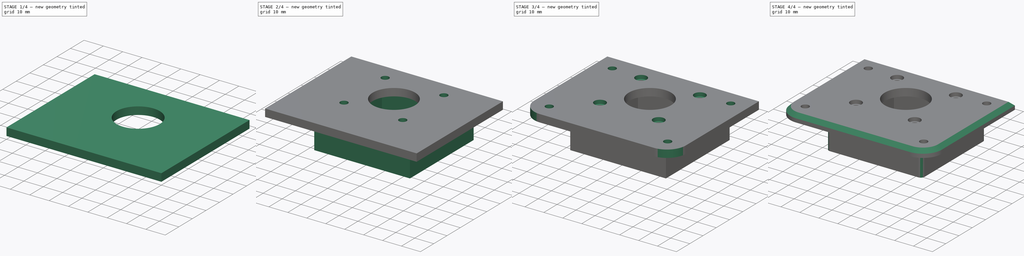
[diagram: build sequence overview — one tinted view per stage of 4, left to right]
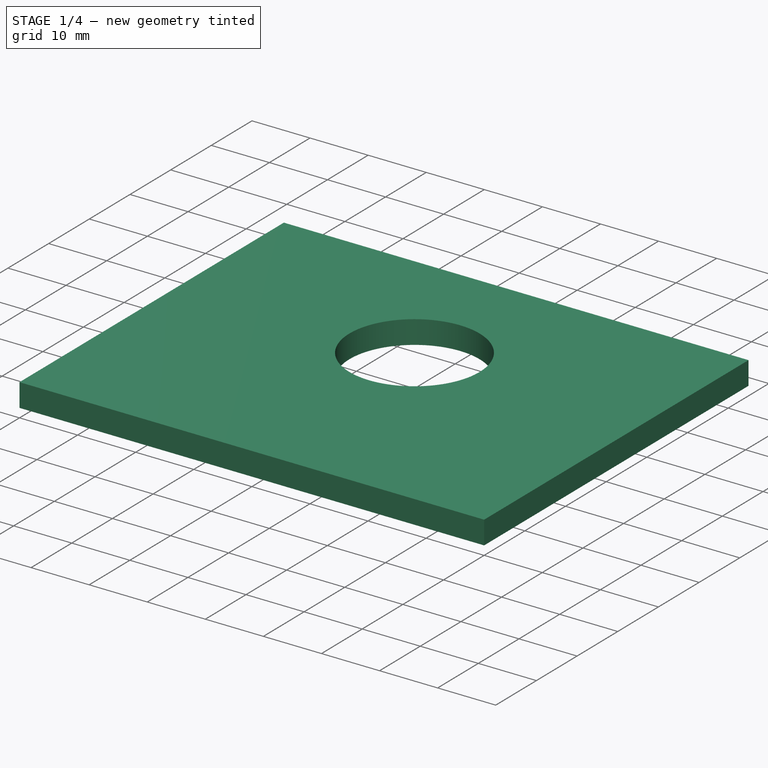
[diagram: stage 1 of 4 — iso view after this stage's code; geometry added in this stage tinted green]
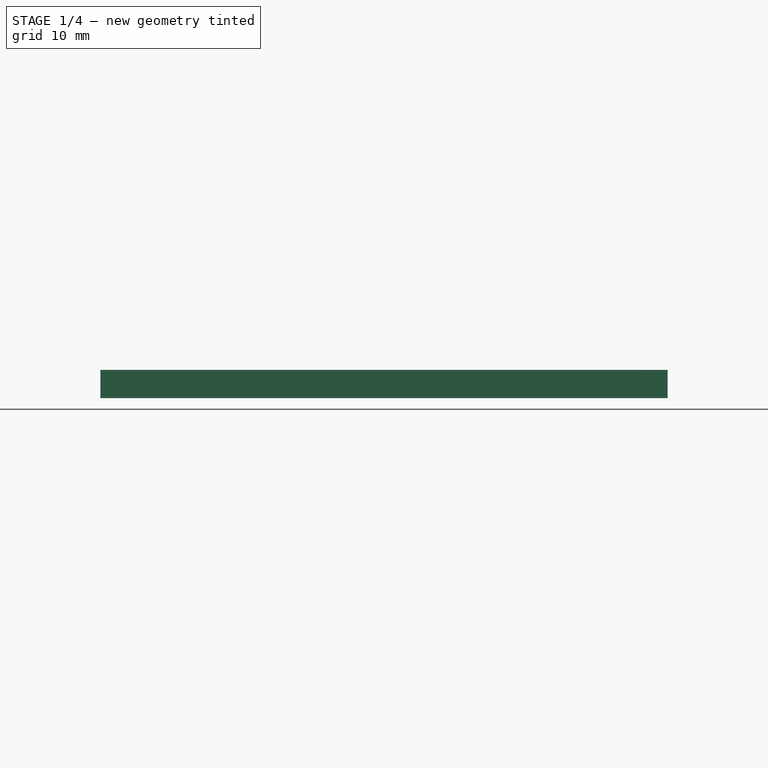
[diagram: stage 1 of 4 — front view after this stage's code; geometry added in this stage tinted green]
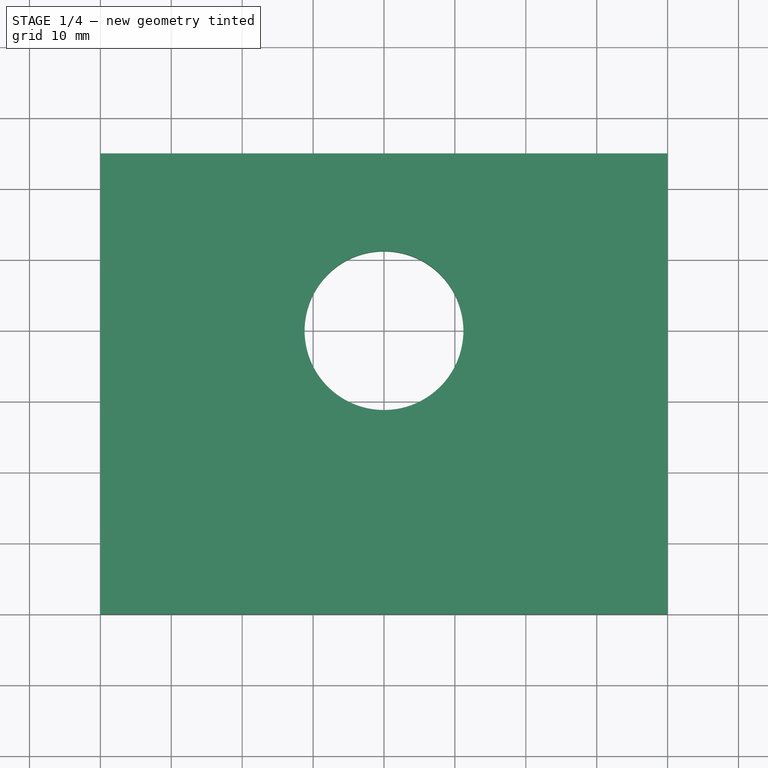
[diagram: stage 1 of 4 — top view after this stage's code; geometry added in this stage tinted green]
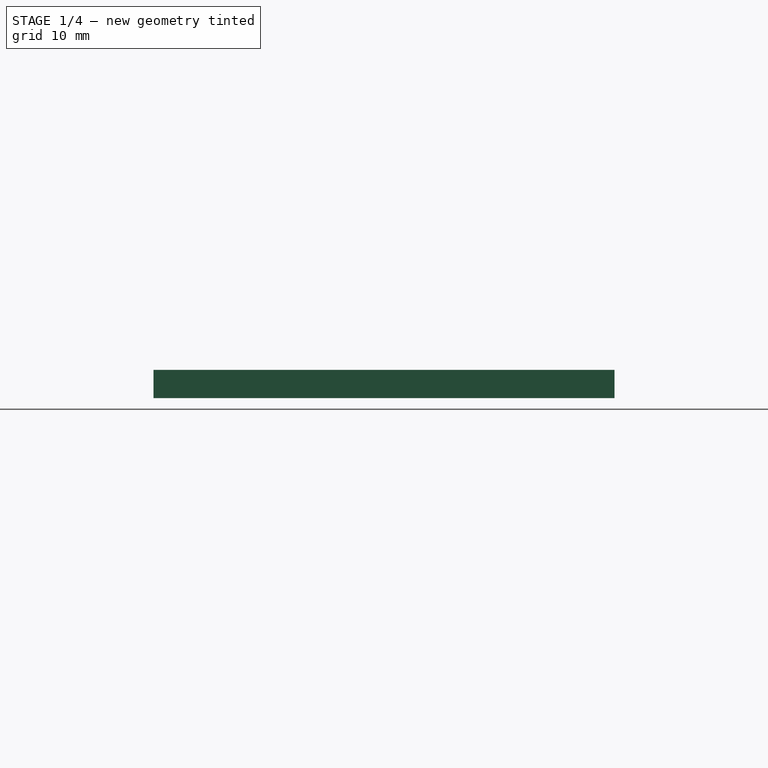
[diagram: stage 1 of 4 — right view after this stage's code; geometry added in this stage tinted green]
FCSTD DOCUMENT  (FreeCAD 0.18.4R)
Label: steppermount
License: All rights reserved
LicenseURL: http://en.wikipedia.org/wiki/All_rights_reserved
objects: Sketcher::SketchObject×6, PartDesign::Pocket×4, PartDesign::Pad×2, PartDesign::Fillet×2, PartDesign::Chamfer×1, PartDesign::Body×1
note: 22 computed .brp shape members not serialized (recipe doc carries the construction recipe); baked Part::Feature solids carry a one-line shape summary decoded from their .brp

FEATURE [Sketcher::SketchObject] Sketch
  MapMode = 5
  Support = -> [XY_Plane]
  sketch-geometry (4):
    g0: LineSegment StartX=-40 StartY=25 StartZ=0 EndX=40 EndY=25 EndZ=0
    g1: LineSegment StartX=40 StartY=25 StartZ=0 EndX=40 EndY=-40 EndZ=0
    g2: LineSegment StartX=40 StartY=-40 StartZ=0 EndX=-40 EndY=-40 EndZ=0
    g3: LineSegment StartX=-40 StartY=-40 StartZ=0 EndX=-40 EndY=25 EndZ=0
  constraints (11):
    c: Coincident(g0,g1)
    c: Coincident(g1,g2)
    c: Coincident(g2,g3)
    c: Coincident(g3,g0)
    c: Horizontal(g2)
    c: Vertical(g1)
    c: Vertical(g3)
    c: DistanceX(g0,g0) = 80
    c: DistanceY(g3,g3) = 65
    c: DistanceY(g-1,g0) = 25
    c: Symmetric(g0,g0,g-2)
FEATURE [PartDesign::Pad] Pad
  Length = 4
  Length2 = 100
  Profile = -> Sketch
  Refine = true
  Type = 0
FEATURE [Sketcher::SketchObject] Sketch001
  MapMode = 5
  Placement = pos=(0,0,4) rot=(0,0,1;0rad)
  Support = -> [Pad]
  sketch-geometry (1):
    g0: Circle CenterX=0 CenterY=0 CenterZ=0 NormalX=0 NormalY=0 NormalZ=1 AngleXU=0 Radius=11.2
  constraints (2):
    c: Coincident(g0,g-1)
    c: Radius(g0) = 11.2
FEATURE [PartDesign::Pocket] Pocket
  BaseFeature = -> Pad
  Length = 5
  Length2 = 100
  Profile = -> Sketch001
  Refine = true
  Type = 1
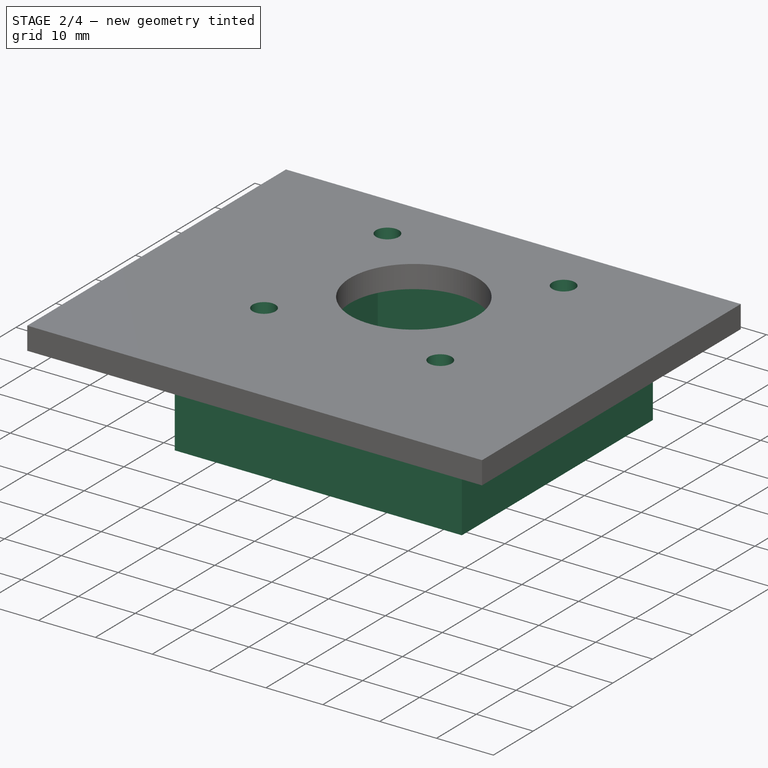
[diagram: stage 2 of 4 — iso view after this stage's code; geometry added in this stage tinted green]
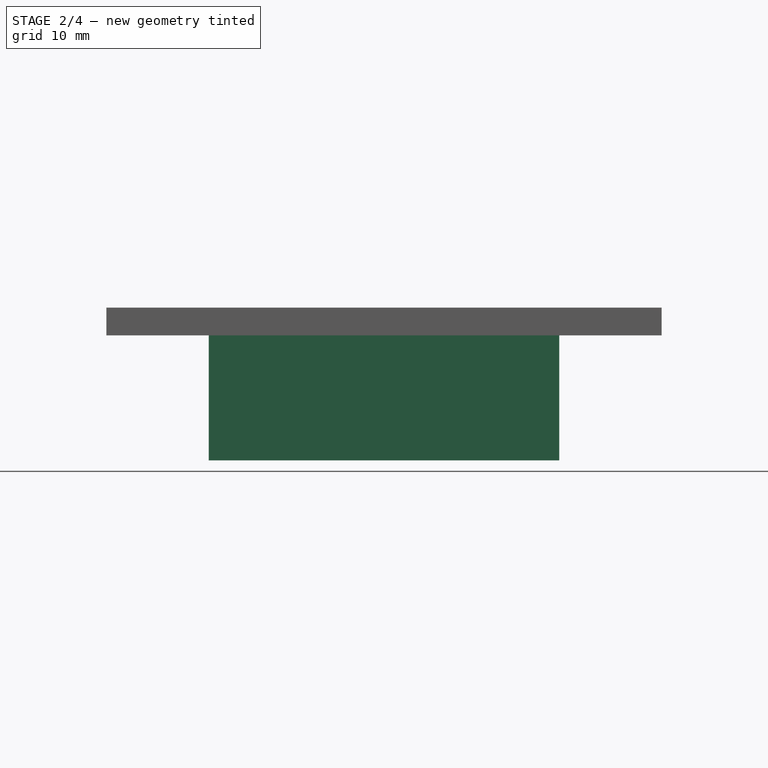
[diagram: stage 2 of 4 — front view after this stage's code; geometry added in this stage tinted green]
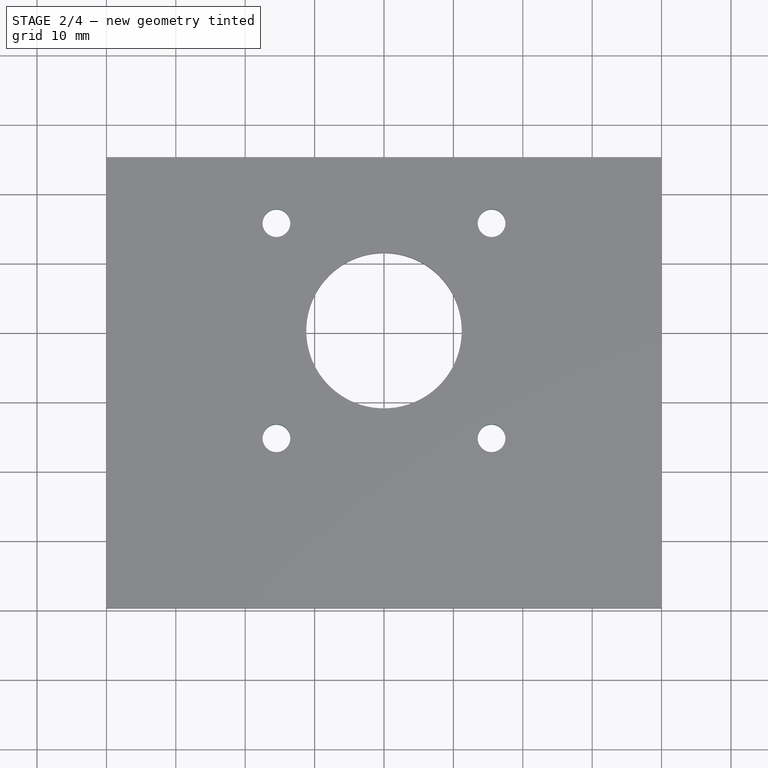
[diagram: stage 2 of 4 — top view after this stage's code; geometry added in this stage tinted green]
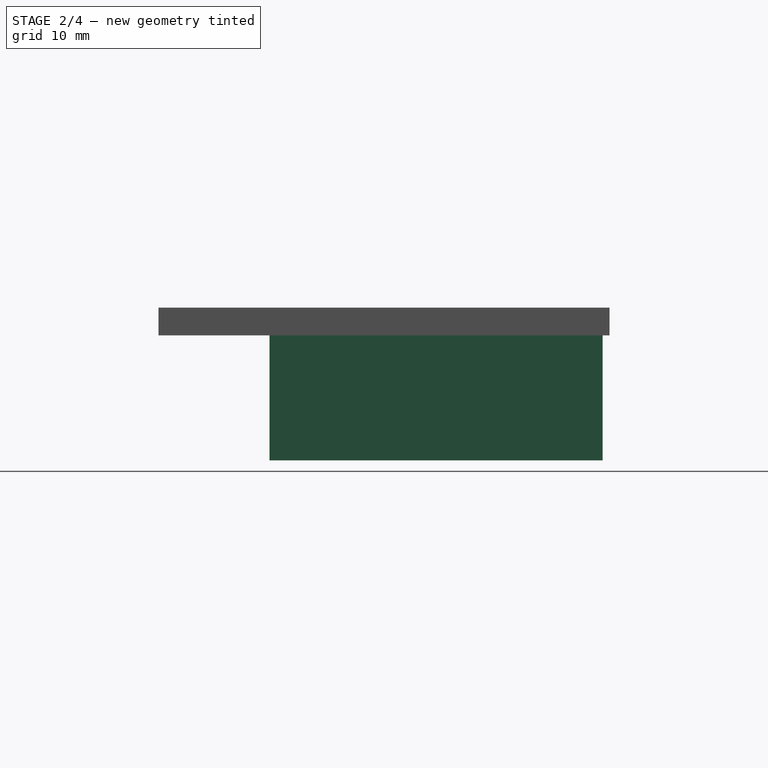
[diagram: stage 2 of 4 — right view after this stage's code; geometry added in this stage tinted green]
FEATURE [Sketcher::SketchObject] Sketch002
  ExternalGeometry = -> [Pocket]
  MapMode = 5
  Placement = pos=(0,0,4) rot=(0,0,1;0rad)
  Support = -> [Pocket]
  sketch-geometry (8):
    g0: LineSegment [constr] StartX=-15.5 StartY=15.5 StartZ=0 EndX=15.5 EndY=15.5 EndZ=0
    g1: LineSegment [constr] StartX=15.5 StartY=15.5 StartZ=0 EndX=15.5 EndY=-15.5 EndZ=0
    g2: LineSegment [constr] StartX=15.5 StartY=-15.5 StartZ=0 EndX=-15.5 EndY=-15.5 EndZ=0
    g3: LineSegment [constr] StartX=-15.5 StartY=-15.5 StartZ=0 EndX=-15.5 EndY=15.5 EndZ=0
    g4: Circle CenterX=-15.5 CenterY=15.5 CenterZ=0 NormalX=0 NormalY=0 NormalZ=1 AngleXU=0 Radius=2
    g5: Circle CenterX=-15.5 CenterY=-15.5 CenterZ=0 NormalX=0 NormalY=0 NormalZ=1 AngleXU=0 Radius=2
    g6: Circle CenterX=15.5 CenterY=-15.5 CenterZ=0 NormalX=0 NormalY=0 NormalZ=1 AngleXU=0 Radius=2
    g7: Circle CenterX=15.5 CenterY=15.5 CenterZ=0 NormalX=0 NormalY=0 NormalZ=1 AngleXU=0 Radius=2
  constraints (19):
    c: Coincident(g0,g1)
    c: Coincident(g1,g2)
    c: Coincident(g2,g3)
    c: Coincident(g3,g0)
    c: Horizontal(g0)
    c: Horizontal(g2)
    c: Vertical(g1)
    c: Vertical(g3)
    c: Symmetric(g1,g0,g-1)
    c: Equal(g3,g0)
    c: DistanceX(g0,g0) = 31
    c: Coincident(g4,g0)
    c: Coincident(g5,g2)
    c: Coincident(g6,g1)
    c: Coincident(g7,g0)
    c: Equal(g7,g4)
    c: Equal(g4,g5)
    c: Equal(g5,g6)
    c: Radius(g4) = 2
FEATURE [PartDesign::Pocket] Pocket001
  BaseFeature = -> Pocket
  Length = 5
  Length2 = 100
  Profile = -> Sketch002
  Refine = true
  Type = 1
FEATURE [Sketcher::SketchObject] Sketch003
  ExternalGeometry = -> [Pocket001]
  MapMode = 5
  Placement = pos=(0,0,0) rot=(1,0,0;3.14159rad)
  Support = -> [Pocket001]
  sketch-geometry (10):
    g0: LineSegment StartX=-25.25 StartY=-24 StartZ=0 EndX=25.25 EndY=-24 EndZ=0
    g1: LineSegment StartX=25.25 StartY=-24 StartZ=0 EndX=25.25 EndY=24 EndZ=0
    g2: LineSegment StartX=25.25 StartY=24 StartZ=0 EndX=-25.25 EndY=24 EndZ=0
    g3: LineSegment StartX=-25.25 StartY=24 StartZ=0 EndX=-25.25 EndY=-24 EndZ=0
    g4: LineSegment StartX=21.15 StartY=21.15 StartZ=0 EndX=-21.15 EndY=21.15 EndZ=0
    g5: LineSegment StartX=-21.15 StartY=21.15 StartZ=0 EndX=-21.15 EndY=-21.15 EndZ=0
    g6: LineSegment StartX=-21.15 StartY=-21.15 StartZ=0 EndX=21.15 EndY=-21.15 EndZ=0
    g7: LineSegment StartX=21.15 StartY=-21.15 StartZ=0 EndX=21.15 EndY=21.15 EndZ=0
    g8: LineSegment [constr] StartX=-21.15 StartY=21.15 StartZ=0 EndX=-21.15 EndY=24 EndZ=0
    g9: LineSegment [constr] StartX=-21.15 StartY=-21.15 StartZ=0 EndX=-21.15 EndY=-24 EndZ=0
  constraints (28):
    c: Coincident(g0,g1)
    c: Coincident(g1,g2)
    c: Coincident(g2,g3)
    c: Coincident(g3,g0)
    c: Horizontal(g0)
    c: Vertical(g1)
    c: Vertical(g3)
    c: Coincident(g4,g5)
    c: Coincident(g5,g6)
    c: Coincident(g6,g7)
    c: Coincident(g7,g4)
    c: Horizontal(g6)
    c: Vertical(g5)
    c: Vertical(g7)
    c: Symmetric(g2,g1,g-2)
    c: DistanceX(g2,g2) = 50.5
    c: DistanceX(g4,g4) = 42.3
    c: DistanceY(g3,g3) = 48
    c: DistanceY(g5,g5) = 42.3
    c: Coincident(g8,g4)
    c: PointOnObject(g8,g2)
    c: Coincident(g9,g5)
    c: PointOnObject(g9,g0)
    c: Vertical(g9)
    c: Vertical(g8)
    c: Equal(g8,g9)
    c: Horizontal(g4)
    c: Symmetric(g4,g5,g-1)
FEATURE [PartDesign::Pad] Pad001
  BaseFeature = -> Pocket001
  Length = 18
  Length2 = 100
  Profile = -> Sketch003
  Refine = true
  Type = 0
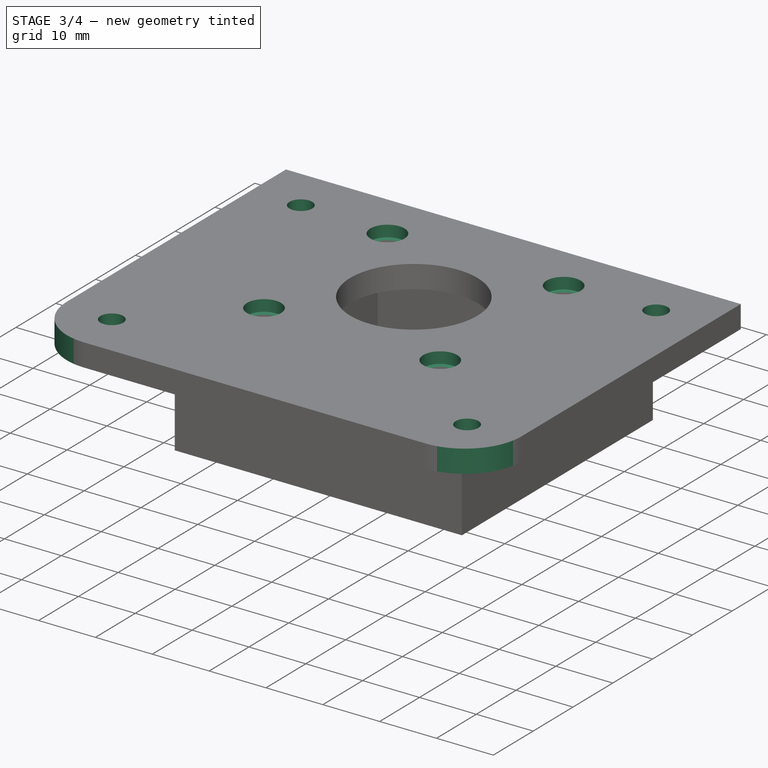
[diagram: stage 3 of 4 — iso view after this stage's code; geometry added in this stage tinted green]
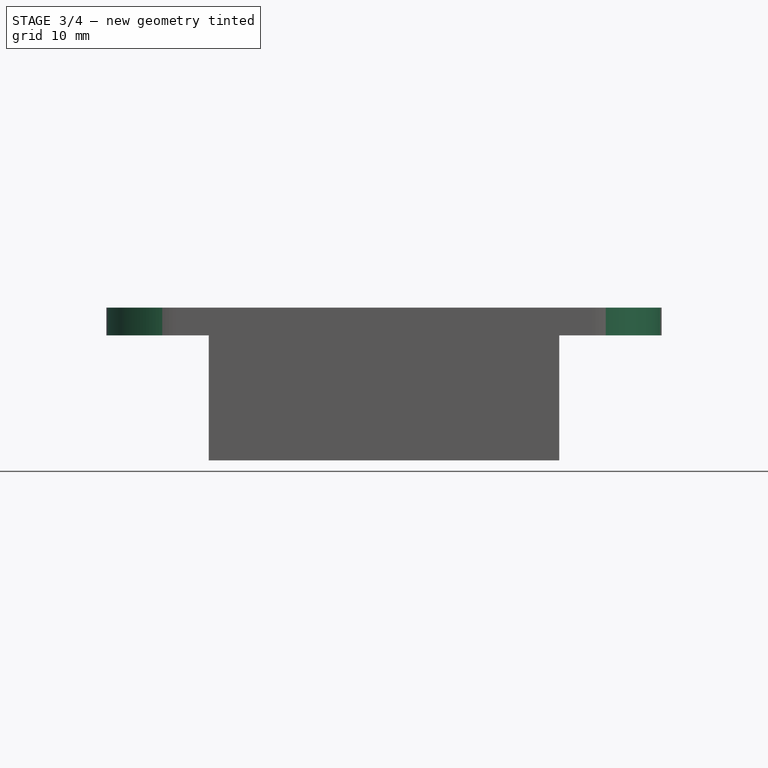
[diagram: stage 3 of 4 — front view after this stage's code; geometry added in this stage tinted green]
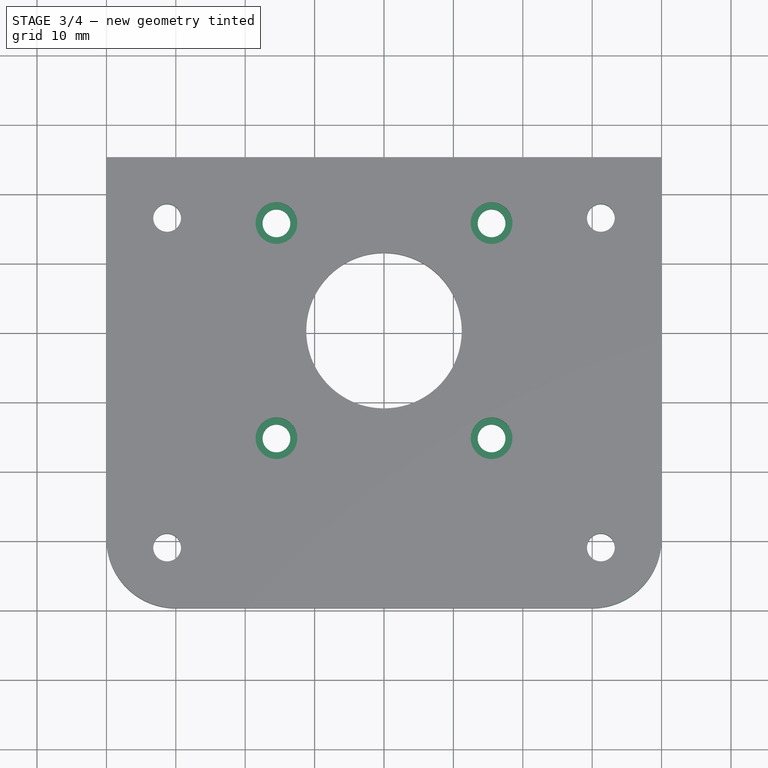
[diagram: stage 3 of 4 — top view after this stage's code; geometry added in this stage tinted green]
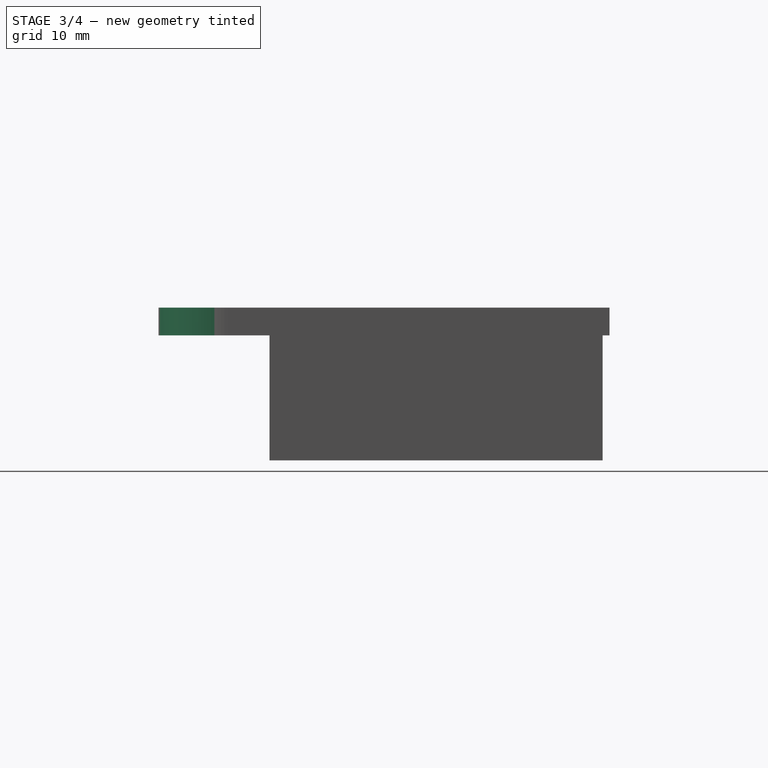
[diagram: stage 3 of 4 — right view after this stage's code; geometry added in this stage tinted green]
FEATURE [Sketcher::SketchObject] Sketch004
  ExternalGeometry = -> [Pad001]
  MapMode = 5
  Placement = pos=(0,0,4) rot=(0,0,1;0rad)
  Support = -> [Pad001]
  sketch-geometry (4):
    g0: Circle CenterX=-15.5 CenterY=15.5 CenterZ=0 NormalX=0 NormalY=0 NormalZ=1 AngleXU=0 Radius=3
    g1: Circle CenterX=15.5 CenterY=15.5 CenterZ=0 NormalX=0 NormalY=0 NormalZ=1 AngleXU=0 Radius=3
    g2: Circle CenterX=15.5 CenterY=-15.5 CenterZ=0 NormalX=0 NormalY=0 NormalZ=1 AngleXU=0 Radius=3
    g3: Circle CenterX=-15.5 CenterY=-15.5 CenterZ=0 NormalX=0 NormalY=0 NormalZ=1 AngleXU=0 Radius=3
  constraints (8):
    c: Coincident(g0,g-3)
    c: Coincident(g2,g-5)
    c: Coincident(g3,g-6)
    c: Coincident(g-4,g1)
    c: Equal(g0,g1)
    c: Equal(g1,g2)
    c: Equal(g2,g3)
    c: Radius(g0) = 3
FEATURE [PartDesign::Pocket] Pocket002
  BaseFeature = -> Pad001
  Length = 2
  Length2 = 100
  Profile = -> Sketch004
  Refine = true
  Type = 0
FEATURE [Sketcher::SketchObject] Sketch005
  ExternalGeometry = -> [Pocket002]
  MapMode = 5
  Placement = pos=(0,0,4) rot=(0,0,1;0rad)
  Support = -> [Pocket002]
  sketch-geometry (11):
    g0: Circle CenterX=-31.25 CenterY=16.25 CenterZ=0 NormalX=0 NormalY=0 NormalZ=1 AngleXU=0 Radius=2
    g1: Circle CenterX=31.25 CenterY=16.25 CenterZ=0 NormalX=0 NormalY=0 NormalZ=1 AngleXU=0 Radius=2
    g2: Circle CenterX=31.25 CenterY=-31.25 CenterZ=0 NormalX=0 NormalY=0 NormalZ=1 AngleXU=0 Radius=2
    g3: Circle CenterX=-31.25 CenterY=-31.25 CenterZ=0 NormalX=0 NormalY=0 NormalZ=1 AngleXU=0 Radius=2
    g4: LineSegment [constr] StartX=-31.25 StartY=16.25 StartZ=0 EndX=31.25 EndY=16.25 EndZ=0
    g5: LineSegment [constr] StartX=31.25 StartY=16.25 StartZ=0 EndX=31.25 EndY=-31.25 EndZ=0
    g6: LineSegment [constr] StartX=31.25 StartY=-31.25 StartZ=0 EndX=-31.25 EndY=-31.25 EndZ=0
    g7: LineSegment [constr] StartX=-31.25 StartY=-31.25 StartZ=0 EndX=-31.25 EndY=16.25 EndZ=0
    g8: LineSegment [constr] StartX=-31.25 StartY=-40 StartZ=0 EndX=-31.25 EndY=-31.25 EndZ=0
    g9: LineSegment [constr] StartX=-31.25 StartY=16.25 StartZ=0 EndX=-31.25 EndY=25 EndZ=0
    g10: LineSegment [constr] StartX=-31.25 StartY=16.25 StartZ=0 EndX=-40 EndY=16.25 EndZ=0
  constraints (28):
    c: Coincident(g4,g5)
    c: Coincident(g5,g6)
    c: Coincident(g6,g7)
    c: Coincident(g7,g4)
    c: Horizontal(g6)
    c: Vertical(g5)
    c: Vertical(g7)
    c: Coincident(g4,g0)
    c: Coincident(g5,g2)
    c: Coincident(g4,g1)
    c: Coincident(g3,g6)
    c: Equal(g3,g0)
    c: Equal(g0,g1)
    c: Equal(g1,g2)
    c: Symmetric(g0,g1,g-2)
    c: DistanceX(g4,g4) = 62.5
    c: PointOnObject(g8,g-4)
    c: Coincident(g8,g3)
    c: Vertical(g8)
    c: Coincident(g9,g0)
    c: PointOnObject(g9,g-3)
    c: Vertical(g9)
    c: Equal(g9,g8)
    c: Coincident(g10,g0)
    c: PointOnObject(g10,g-5)
    c: Horizontal(g10)
    c: Equal(g10,g9)
    c: Radius(g3) = 2
FEATURE [PartDesign::Pocket] Pocket003
  BaseFeature = -> Pocket002
  Length = 5
  Length2 = 100
  Profile = -> Sketch005
  Refine = true
  Type = 1
FEATURE [PartDesign::Fillet] Fillet
  Base = -> Pocket003 [Edge8,Edge5]
  BaseFeature = -> Pocket003
  Radius = 10
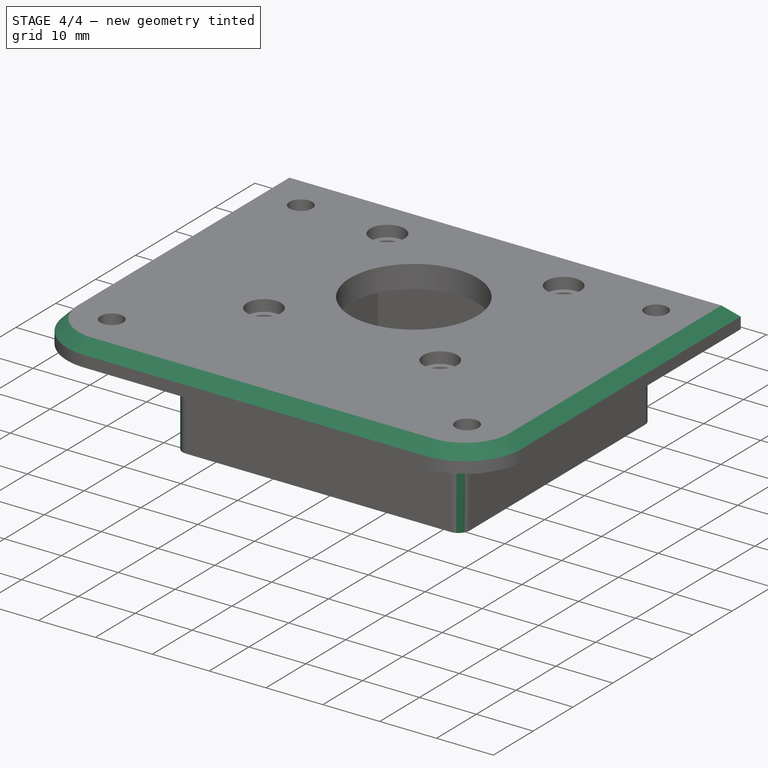
[diagram: stage 4 of 4 — iso view after this stage's code; geometry added in this stage tinted green]
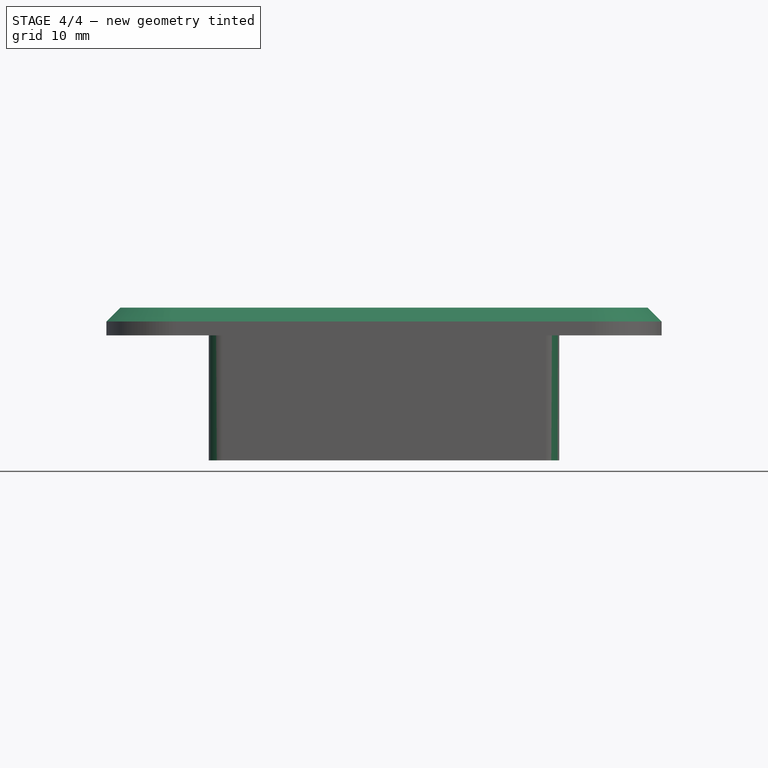
[diagram: stage 4 of 4 — front view after this stage's code; geometry added in this stage tinted green]
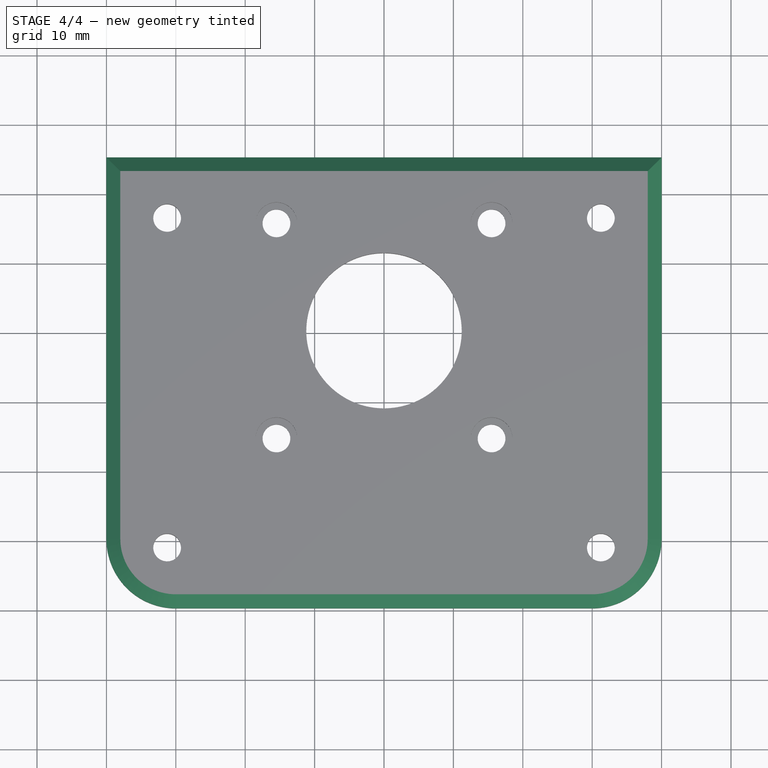
[diagram: stage 4 of 4 — top view after this stage's code; geometry added in this stage tinted green]
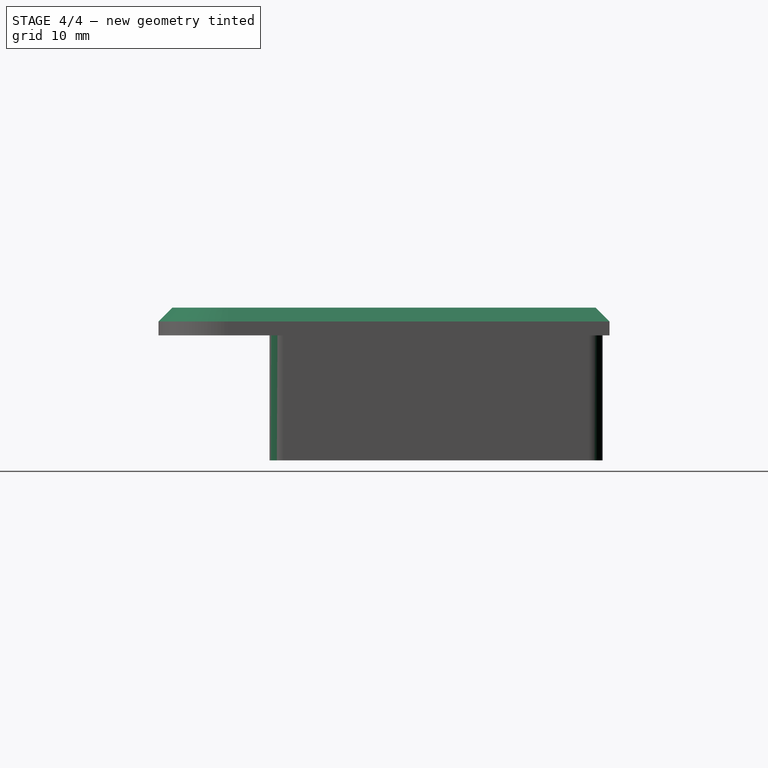
[diagram: stage 4 of 4 — right view after this stage's code; geometry added in this stage tinted green]
FEATURE [PartDesign::Fillet] Fillet001
  Base = -> Fillet [Edge43,Edge39,Edge41,Edge38]
  BaseFeature = -> Fillet
  Radius = 2
FEATURE [PartDesign::Chamfer] Chamfer
  Base = -> Fillet001 [Edge41,Edge37]
  BaseFeature = -> Fillet001
  Size = 2
FEATURE [PartDesign::Body] Body
  Group = -> [Sketch,Pad,Sketch001,Pocket,Sketch002,Pocket001,Sketch003,Pad001,Sketch004,Pocket002,Sketch005,Pocket003,Fillet,Fillet001,Chamfer]
  Origin = -> Origin
  Tip = -> Chamfer
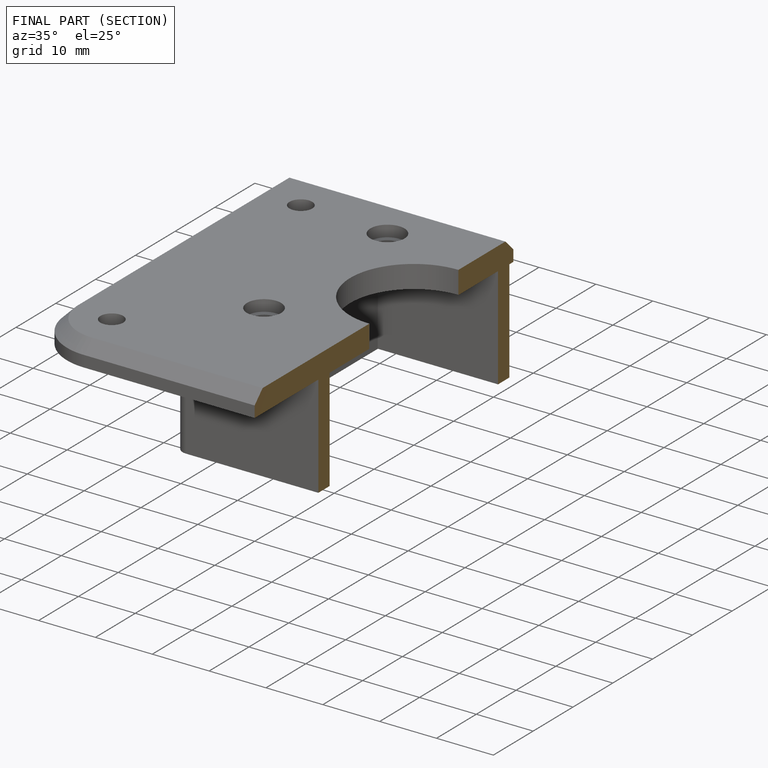
[diagram: finished part — half-section view (interior)]
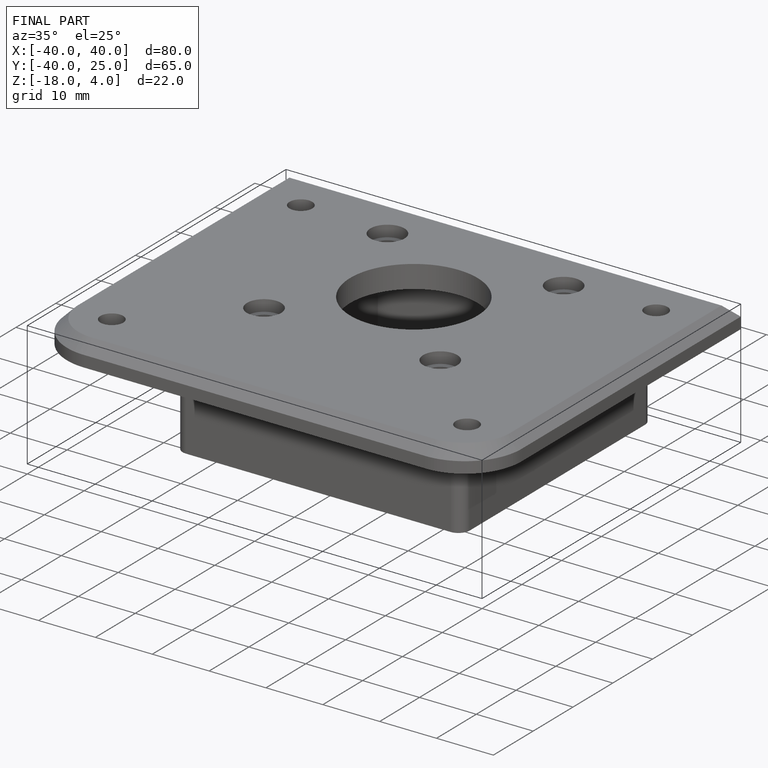
[diagram: finished part — iso view with bounding-box wireframe]
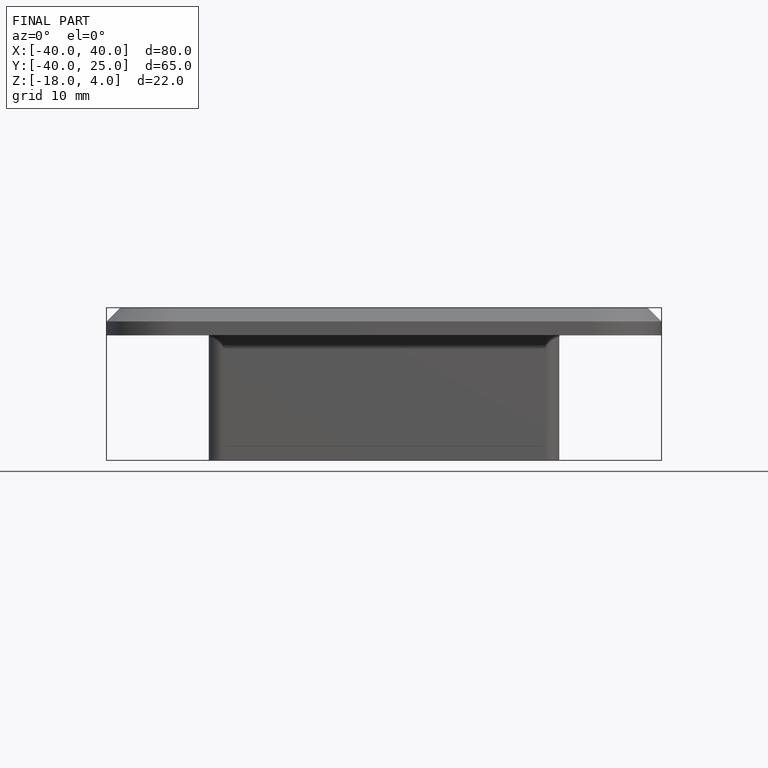
[diagram: finished part — front view with bounding-box wireframe]
